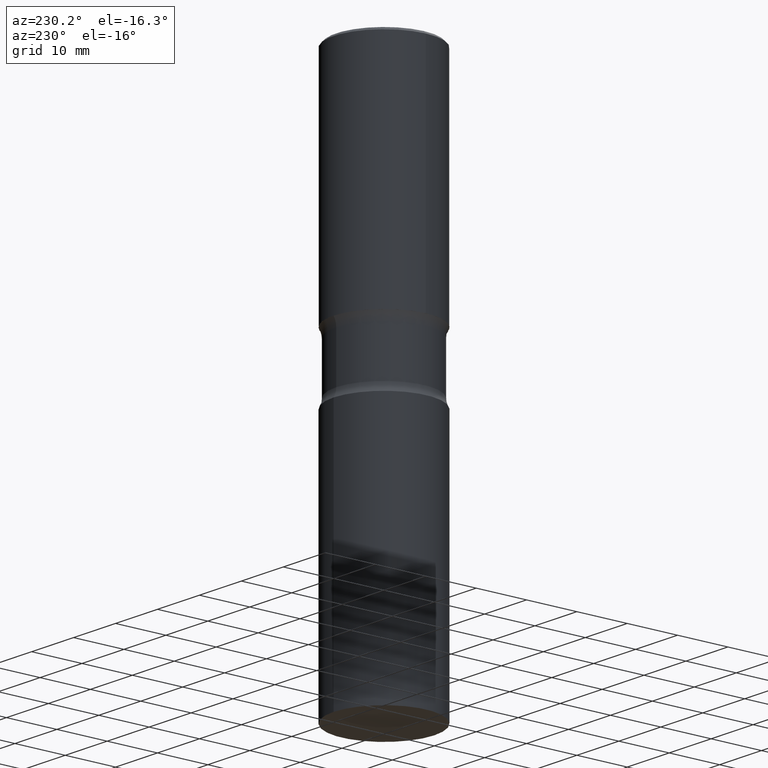
[diagram: clean part render]
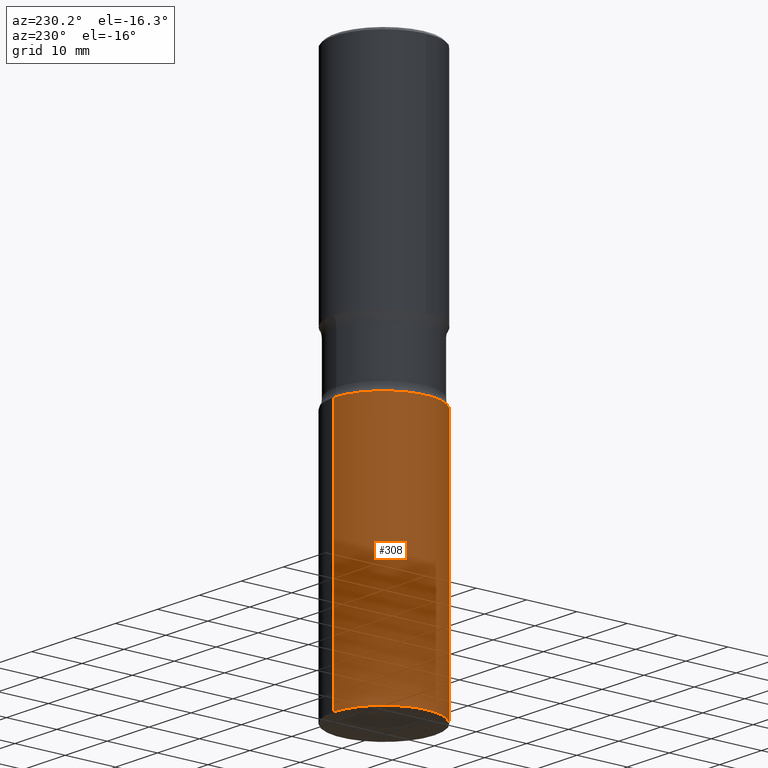
[diagram: same view with one face highlighted and labeled with its STEP entity id]
A machine part, auxiliary view. The second image highlights one B-rep face of the part: STEP entity #308.
In plain terms, the highlighted cylindrical surface (partial cylindrical patch) has radius 10 mm, axis along (-0, 0, 1).
Its self-contained STEP definition (entity closure, byte-faithful):
#11 = EDGE_CURVE ( 'NONE', #263, #273, #190, .T. ) ;
#22 = CARTESIAN_POINT ( 'NONE',  ( -2.749192406205083217E-15, -0.3937000000000001054, 1.374407621938595715E-15 ) ) ;
#43 = AXIS2_PLACEMENT_3D ( 'NONE', #266, #425, #269 ) ;
#78 = CARTESIAN_POINT ( 'NONE',  ( 0.000000000000000000, 0.000000000000000000, 0.000000000000000000 ) ) ;
#127 = ORIENTED_EDGE ( 'NONE', *, *, #11, .T. ) ;
#128 = VERTEX_POINT ( 'NONE', #300 ) ;
#144 = DIRECTION ( 'NONE',  ( -2.445803288082414641E-29, 3.491002341728715803E-15, 1.000000000000000000 ) ) ;
#149 = CIRCLE ( 'NONE', #43, 0.3937000000000001054 ) ;
#153 = DIRECTION ( 'NONE',  ( -6.982962677686265133E-15, -1.000000000000000000, 3.491002341728715803E-15 ) ) ;
#156 = CYLINDRICAL_SURFACE ( 'NONE', #472, 0.3937000000000001054 ) ;
#173 = VECTOR ( 'NONE', #494, 39.37007874015748143 ) ;
#180 = CARTESIAN_POINT ( 'NONE',  ( 1.039955558092642645E-28, -1.484374195703049851E-14, -4.251999999999999780 ) ) ;
#187 = EDGE_CURVE ( 'NONE', #273, #323, #302, .T. ) ;
#190 = CIRCLE ( 'NONE', #507, 0.3937000000000001054 ) ;
#198 = ORIENTED_EDGE ( 'NONE', *, *, #187, .T. ) ;
#222 = ORIENTED_EDGE ( 'NONE', *, *, #265, .F. ) ;
#263 = VERTEX_POINT ( 'NONE', #384 ) ;
#264 = LINE ( 'NONE', #307, #339 ) ;
#265 = EDGE_CURVE ( 'NONE', #263, #128, #264, .T. ) ;
#266 = CARTESIAN_POINT ( 'NONE',  ( 5.584991808336194421E-29, -7.971703847337524080E-15, -2.283500000000000085 ) ) ;
#269 = DIRECTION ( 'NONE',  ( -6.982962677686265133E-15, -1.000000000000000000, 3.469453890861395179E-15 ) ) ;
#271 = DIRECTION ( 'NONE',  ( -2.445803288082414921E-29, 3.491002341728716197E-15, 1.000000000000000000 ) ) ;
#273 = VERTEX_POINT ( 'NONE', #506 ) ;
#284 = EDGE_LOOP ( 'NONE', ( #222, #127, #198, #505 ) ) ;
#299 = DIRECTION ( 'NONE',  ( -6.982962677686265133E-15, -1.000000000000000000, 4.163344669033674057E-15 ) ) ;
#300 = CARTESIAN_POINT ( 'NONE',  ( 2.797406750687618916E-15, 0.3936999999999921118, -2.283500000000001418 ) ) ;
#302 = LINE ( 'NONE', #22, #173 ) ;
#307 = CARTESIAN_POINT ( 'NONE',  ( 2.797406750687514786E-15, 0.3937000000000001054, -1.374407621938595715E-15 ) ) ;
#308 = ADVANCED_FACE ( 'NONE', ( #424 ), #156, .T. ) ;
#317 = DIRECTION ( 'NONE',  ( -2.445803288082414641E-29, 3.491002341728715803E-15, 1.000000000000000000 ) ) ;
#323 = VERTEX_POINT ( 'NONE', #477 ) ;
#339 = VECTOR ( 'NONE', #271, 39.37007874015748143 ) ;
#384 = CARTESIAN_POINT ( 'NONE',  ( 2.797406750687594856E-15, 0.3936999999999852839, -4.252000000000001556 ) ) ;
#424 = FACE_OUTER_BOUND ( 'NONE', #284, .T. ) ;
#425 = DIRECTION ( 'NONE',  ( -2.445803288082414641E-29, 3.491002341728715803E-15, 1.000000000000000000 ) ) ;
#472 = AXIS2_PLACEMENT_3D ( 'NONE', #78, #317, #153 ) ;
#477 = CARTESIAN_POINT ( 'NONE',  ( -2.749192406205027602E-15, -0.3937000000000080990, -2.283499999999998753 ) ) ;
#484 = EDGE_CURVE ( 'NONE', #128, #323, #149, .T. ) ;
#494 = DIRECTION ( 'NONE',  ( -2.445803288082414921E-29, 3.491002341728716197E-15, 1.000000000000000000 ) ) ;
#505 = ORIENTED_EDGE ( 'NONE', *, *, #484, .F. ) ;
#506 = CARTESIAN_POINT ( 'NONE',  ( -2.749192406204979481E-15, -0.3937000000000149269, -4.251999999999998003 ) ) ;
#507 = AXIS2_PLACEMENT_3D ( 'NONE', #180, #144, #299 ) ;